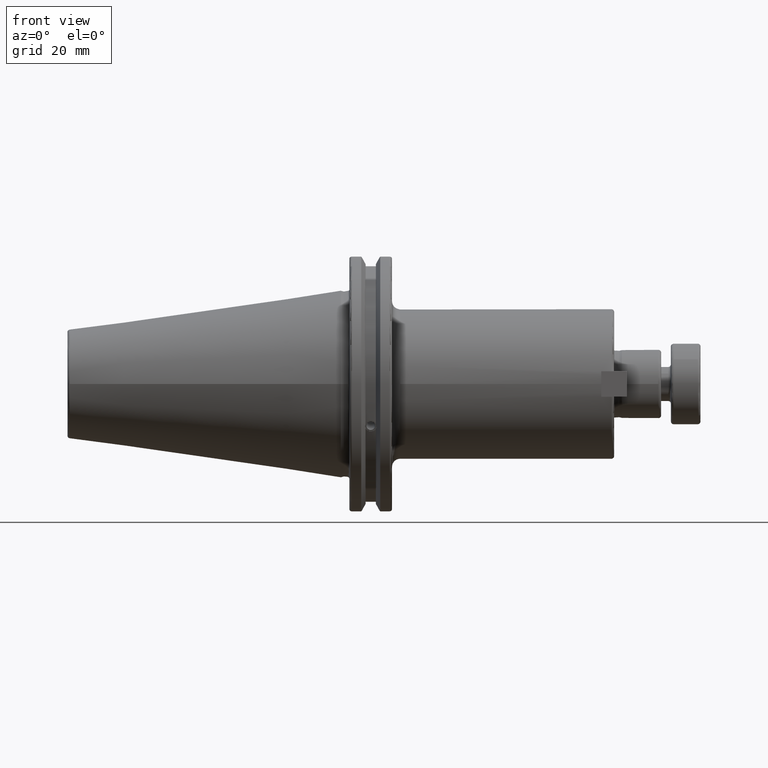
[diagram: clean part render]
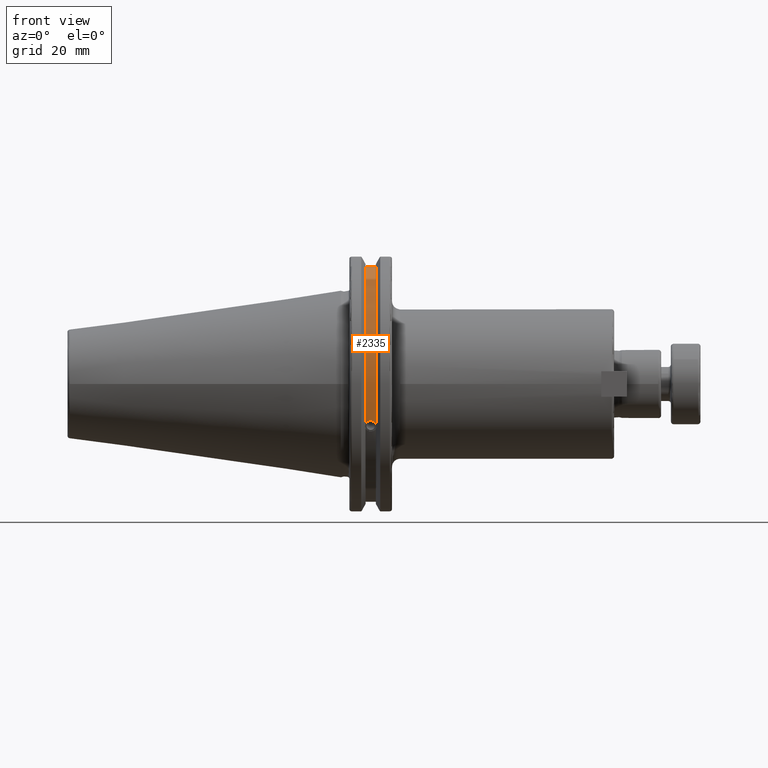
[diagram: same view with one face highlighted and labeled with its STEP entity id]
A machine part, front view. The second image highlights one B-rep face of the part: STEP entity #2335.
In plain terms, the highlighted cylindrical surface (partial cylindrical patch) has radius 45.6435 mm, axis along (1, 0, 0).
Its self-contained STEP definition (entity closure, byte-faithful):
#111=B_SPLINE_CURVE_WITH_KNOTS('',3,(#3827,#3828,#3829,#3830,#3831,#3832,
#3833,#3834,#3835,#3836,#3837,#3838,#3839,#3840),.UNSPECIFIED.,.F.,.F.,
(4,2,2,2,2,2,4),(0.401548312576688,0.47469709549563,0.553813286063442,0.632929476631253,
0.712045667199065,0.791161857766876,0.864310640685818),.UNSPECIFIED.);
#234=CYLINDRICAL_SURFACE('',#2648,45.6435);
#337=FACE_OUTER_BOUND('',#492,.T.);
#492=EDGE_LOOP('',(#2050,#2051,#2052,#2053));
#628=LINE('',#4316,#784);
#784=VECTOR('',#3103,10.);
#941=CIRCLE('',#2645,45.6435);
#943=CIRCLE('',#2649,45.6435);
#1048=VERTEX_POINT('',#3824);
#1049=VERTEX_POINT('',#3826);
#1132=VERTEX_POINT('',#4313);
#1133=VERTEX_POINT('',#4315);
#1302=EDGE_CURVE('',#1049,#1048,#111,.T.);
#1413=EDGE_CURVE('',#1133,#1132,#628,.T.);
#1463=EDGE_CURVE('',#1132,#1049,#941,.T.);
#1465=EDGE_CURVE('',#1133,#1048,#943,.T.);
#2050=ORIENTED_EDGE('',*,*,#1302,.T.);
#2051=ORIENTED_EDGE('',*,*,#1465,.F.);
#2052=ORIENTED_EDGE('',*,*,#1413,.T.);
#2053=ORIENTED_EDGE('',*,*,#1463,.T.);
#2335=ADVANCED_FACE('',(#337),#234,.T.);
#2645=AXIS2_PLACEMENT_3D('',#4465,#3214,#3215);
#2648=AXIS2_PLACEMENT_3D('',#4468,#3220,#3221);
#2649=AXIS2_PLACEMENT_3D('',#4469,#3222,#3223);
#3103=DIRECTION('',(-1.,0.,0.));
#3214=DIRECTION('center_axis',(1.,0.,0.));
#3215=DIRECTION('ref_axis',(0.,0.,-1.));
#3220=DIRECTION('center_axis',(1.,0.,0.));
#3221=DIRECTION('ref_axis',(0.,-0.888619069115281,0.458645996390125));
#3222=DIRECTION('center_axis',(1.,0.,0.));
#3223=DIRECTION('ref_axis',(0.,0.,-1.));
#3824=CARTESIAN_POINT('',(13.042,-43.1779814500336,-14.7983448449669));
#3826=CARTESIAN_POINT('',(9.21200000000001,-43.1779814500336,-14.7983448449669));
#3827=CARTESIAN_POINT('Ctrl Pts',(9.212,-43.1779814500335,-14.7983448449669));
#3828=CARTESIAN_POINT('Ctrl Pts',(9.31822177598176,-43.2545173750974,-14.5750315766731));
#3829=CARTESIAN_POINT('Ctrl Pts',(9.46970807557666,-43.3223492818373,-14.3712521044637));
#3830=CARTESIAN_POINT('Ctrl Pts',(9.8285050340018,-43.4340904392251,-14.0300988117073));
#3831=CARTESIAN_POINT('Ctrl Pts',(10.0646203280543,-43.4832903960863,-13.8760243976176));
#3832=CARTESIAN_POINT('Ctrl Pts',(10.5820059167872,-43.54802519266,-13.6715068146718));
#3833=CARTESIAN_POINT('Ctrl Pts',(10.863279364774,-43.5636826100883,-13.6211104428929));
#3834=CARTESIAN_POINT('Ctrl Pts',(11.390720635226,-43.5636826100883,-13.6211104428929));
#3835=CARTESIAN_POINT('Ctrl Pts',(11.6719940832128,-43.54802519266,-13.6715068146718));
#3836=CARTESIAN_POINT('Ctrl Pts',(12.1893796719457,-43.4832903960863,-13.8760243976176));
#3837=CARTESIAN_POINT('Ctrl Pts',(12.4254949659982,-43.4340904392251,-14.0300988117073));
#3838=CARTESIAN_POINT('Ctrl Pts',(12.7842919244233,-43.3223492818373,-14.3712521044637));
#3839=CARTESIAN_POINT('Ctrl Pts',(12.9357782240182,-43.2545173750974,-14.5750315766731));
#3840=CARTESIAN_POINT('Ctrl Pts',(13.042,-43.1779814500335,-14.7983448449669));
#4313=CARTESIAN_POINT('',(9.21200000000001,-12.95,43.7678716897452));
#4315=CARTESIAN_POINT('',(13.042,-12.95,43.7678716897452));
#4316=CARTESIAN_POINT('',(11.127,-12.95,43.7678716897452));
#4465=CARTESIAN_POINT('Origin',(9.21200000000001,0.,0.));
#4468=CARTESIAN_POINT('Origin',(11.127,0.,0.));
#4469=CARTESIAN_POINT('Origin',(13.042,0.,0.));